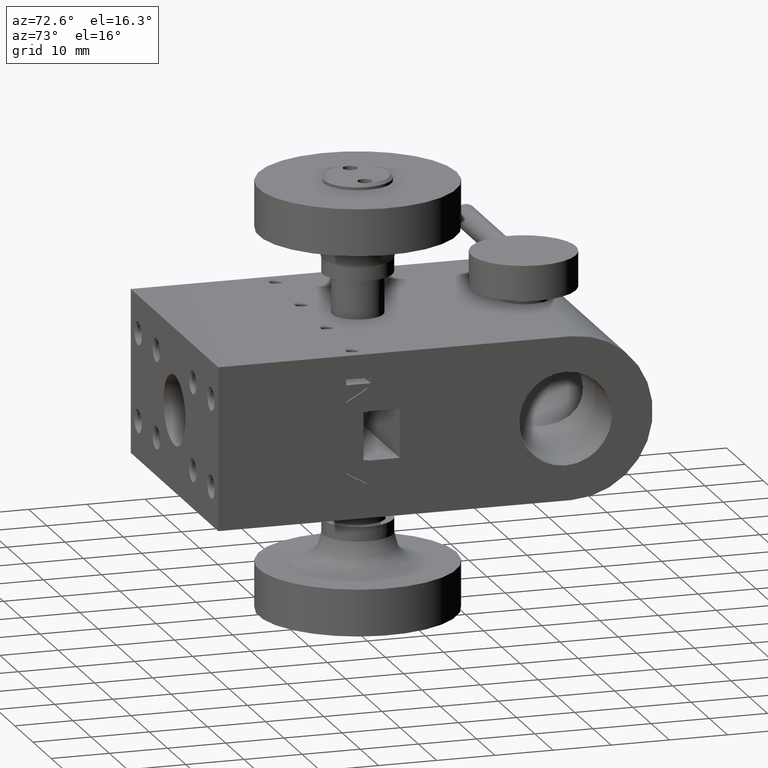
[diagram: clean part render]
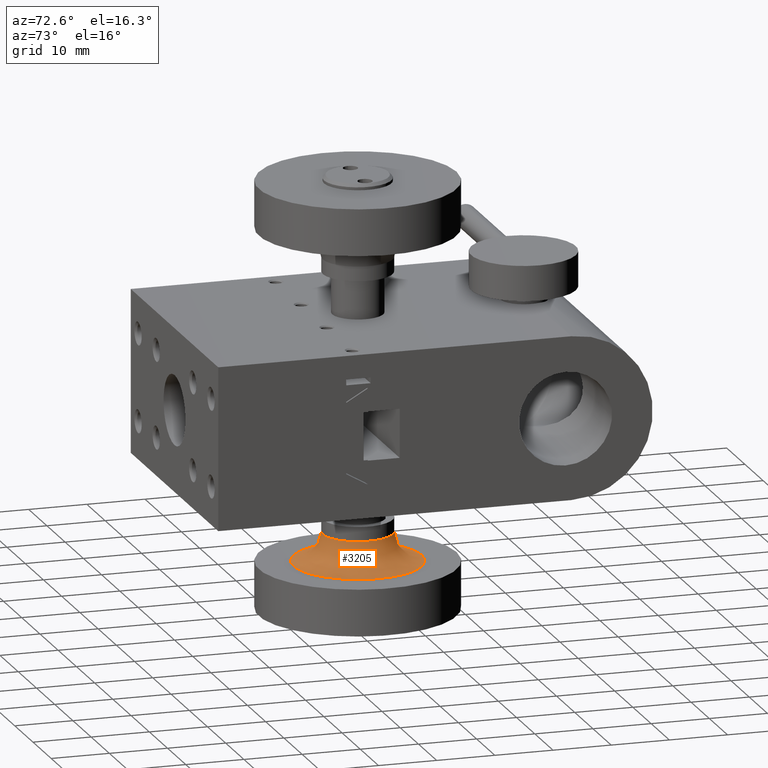
[diagram: same view with one face highlighted and labeled with its STEP entity id]
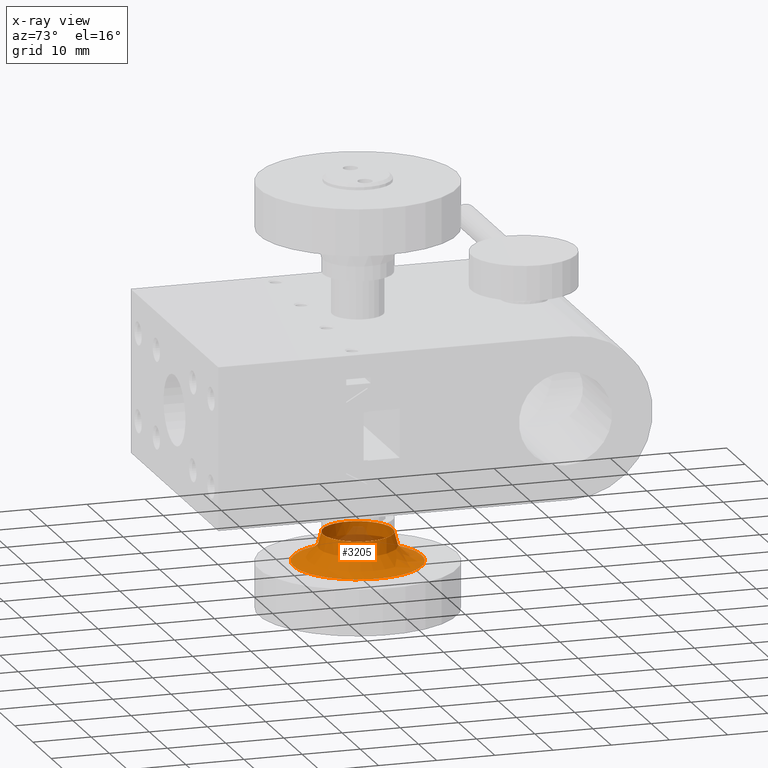
[diagram: x-ray of the same camera — body ghosted, the highlighted face saturated]
A machine part, auxiliary view. The second image highlights one B-rep face of the part: STEP entity #3205.
The next image is the same camera in x-ray: the body ghosted, the highlighted face saturated — about 6% of this face is hidden behind the body in this view.
In plain terms, the highlighted face is a freeform B-spline surface patch.
Its self-contained STEP definition (entity closure, byte-faithful):
#16 = CARTESIAN_POINT ( 'NONE',  ( -10.75139644228301528, 33.85254901752966106, -28.50000000000000000 ) ) ;
#33 = CARTESIAN_POINT ( 'NONE',  ( 10.79556906870054611, 33.61101553062786707, -28.50000000000000000 ) ) ;
#39 = CARTESIAN_POINT ( 'NONE',  ( -10.82765432733599731, 33.43958590687768151, -28.50000000000000000 ) ) ;
#45 = CARTESIAN_POINT ( 'NONE',  ( 16.14213562373092259, 39.57106781186544708, -28.50000000000001421 ) ) ;
#57 = CARTESIAN_POINT ( 'NONE',  ( 5.546319072649843918, 40.99949208852596172, -28.50000000000000000 ) ) ;
#63 = CARTESIAN_POINT ( 'NONE',  ( -10.38346660422327616, 35.13220416043404981, -28.50000000000000000 ) ) ;
#82 = CARTESIAN_POINT ( 'NONE',  ( 5.626238117076923118, 40.95281080506418903, -28.50000000000000000 ) ) ;
#87 = CARTESIAN_POINT ( 'NONE',  ( -9.937246139665202094, 36.23190117376898911, -28.50000000000000000 ) ) ;
#106 = CARTESIAN_POINT ( 'NONE',  ( 9.933316520382829751, 36.22929633842566233, -28.50000000000000000 ) ) ;
#119 = CARTESIAN_POINT ( 'NONE',  ( -3.548108076298940095, 21.08786073826610874, -28.50000000000000355 ) ) ;
#146 = CARTESIAN_POINT ( 'NONE',  ( 3.380625717567026012, 21.02622574388914600, -28.50000000000000355 ) ) ;
#166 = CARTESIAN_POINT ( 'NONE',  ( -2.111015530633238768, 42.29556906869883193, -28.50000000000000000 ) ) ;
#171 = CARTESIAN_POINT ( 'NONE',  ( -1.794773098638565711, 20.64730447128424728, -28.50000000000000355 ) ) ;
#188 = CARTESIAN_POINT ( 'NONE',  ( -2.045402653279724259, 42.30818592639142395, -28.50000000000000000 ) ) ;
#197 = CARTESIAN_POINT ( 'NONE',  ( -1.939585906879527588, 20.67234567266400447, -28.50000000000000355 ) ) ;
#202 = CARTESIAN_POINT ( 'NONE',  ( 4.731901173768947366, 41.43724613966008263, -28.50000000000000000 ) ) ;
#221 = CARTESIAN_POINT ( 'NONE',  ( 4.560834935039394189, 21.48996622918334509, -28.50000000000000355 ) ) ;
#227 = CARTESIAN_POINT ( 'NONE',  ( 10.93876200941283372, 30.32792680570762656, -28.50000000000000000 ) ) ;
#250 = CARTESIAN_POINT ( 'NONE',  ( -7.240977511827475510, 23.18457572885353102, -28.50000000000000355 ) ) ;
#254 = CARTESIAN_POINT ( 'NONE',  ( 10.88520818023198977, 29.91242045770127334, -28.50000000000000000 ) ) ;
#277 = CARTESIAN_POINT ( 'NONE',  ( -10.74629838392092651, 29.14925255843458274, -28.50000000000000000 ) ) ;
#281 = CARTESIAN_POINT ( 'NONE',  ( 10.99998377236804004, 31.16341644303477665, -28.50000000000000000 ) ) ;
#294 = EDGE_CURVE ( 'NONE', #3492, #3492, #2886, .T. ) ;
#301 = CARTESIAN_POINT ( 'NONE',  ( -8.884034468314471411, 25.01339121039729463, -28.50000000000000000 ) ) ;
#305 = CARTESIAN_POINT ( 'NONE',  ( 9.499492088527292211, 25.95368092734829091, -28.50000000000000000 ) ) ;
#327 = CARTESIAN_POINT ( 'NONE',  ( -5.224467544295712251, 21.81793403241615081, -28.50000000000000355 ) ) ;
#330 = CARTESIAN_POINT ( 'NONE',  ( 9.937246139661858990, 26.76809882622857018, -28.50000000000000000 ) ) ;
#348 = CARTESIAN_POINT ( 'NONE',  ( -10.79981798107048263, 29.41084321784766331, -28.50000000000000000 ) ) ;
#374 = CARTESIAN_POINT ( 'NONE',  ( -10.83859111853181645, 33.37754326111785730, -28.50000000000000000 ) ) ;
#399 = CARTESIAN_POINT ( 'NONE',  ( -7.778174593052024299, 39.27817459305202163, -28.50000000000000000 ) ) ;
#404 = CARTESIAN_POINT ( 'NONE',  ( 0.000000000000000000, 42.50000000000000000, -28.50000000000001066 ) ) ;
#417 = CARTESIAN_POINT ( 'NONE',  ( 10.70659239045689048, 34.02400562513545879, -28.50000000000000000 ) ) ;
#424 = CARTESIAN_POINT ( 'NONE',  ( -8.315424271132309642, 38.74097751183796845, -28.50000000000000000 ) ) ;
#428 = CARTESIAN_POINT ( 'NONE',  ( 11.99999999999996980, 37.49999999999998579, -26.42893218813453160 ) ) ;
#443 = CARTESIAN_POINT ( 'NONE',  ( 10.81635905258231567, 33.50159357653358683, -28.50000000000000000 ) ) ;
#450 = CARTESIAN_POINT ( 'NONE',  ( -6.486608789610669668, 40.38403446830857035, -28.50000000000000000 ) ) ;
#456 = CARTESIAN_POINT ( 'NONE',  ( -11.99999999999995381, 25.50000000000002132, -26.42893218813453160 ) ) ;
#468 = CARTESIAN_POINT ( 'NONE',  ( 5.386480983795683741, 41.09285465544952132, -28.50000000000000000 ) ) ;
#475 = CARTESIAN_POINT ( 'NONE',  ( -11.00000000000000000, 31.50000000000000000, -28.50000000000000000 ) ) ;
#494 = CARTESIAN_POINT ( 'NONE',  ( 8.046773133656795807, 39.00954975401321434, -28.50000000000000000 ) ) ;
#505 = CARTESIAN_POINT ( 'NONE',  ( 1.347111479062088602E-15, 20.50000000000000000, -28.50000000000000355 ) ) ;
#530 = CARTESIAN_POINT ( 'NONE',  ( 4.221108225916816892, 21.34200669538659767, -28.50000000000000355 ) ) ;
#546 = CARTESIAN_POINT ( 'NONE',  ( -4.306540600068502478, 41.62198109384577549, -28.50000000000000000 ) ) ;
#554 = CARTESIAN_POINT ( 'NONE',  ( 4.090524755338350360, 21.28874915770350285, -28.50000000000000355 ) ) ;
#556 = AXIS2_PLACEMENT_3D ( 'NONE', #4753, #1222, #4781 ) ;
#577 = CARTESIAN_POINT ( 'NONE',  ( -4.049041805180604747, 41.72767131168673416, -28.50000000000000000 ) ) ;
#582 = CARTESIAN_POINT ( 'NONE',  ( 0.6731671139339172605, 20.49996754473608362, -28.50000000000000355 ) ) ;
#586 = CARTESIAN_POINT ( 'NONE',  ( 3.966084088550289266, 41.76022897074719253, -28.50000000000000000 ) ) ;
#600 = CARTESIAN_POINT ( 'NONE',  ( -2.132855963155415591, 42.29125521661757858, -28.50000000000000000 ) ) ;
#603 = EDGE_CURVE ( 'NONE', #4644, #4644, #4379, .T. ) ;
#609 = CARTESIAN_POINT ( 'NONE',  ( -1.670512926602160775, 20.62722330668192328, -28.50000000000000355 ) ) ;
#613 = CARTESIAN_POINT ( 'NONE',  ( 6.410257687857505715, 22.56024184735327864, -28.50000000000000355 ) ) ;
#633 = CARTESIAN_POINT ( 'NONE',  ( -5.784444692942730448, 22.14366520294946028, -28.50000000000000355 ) ) ;
#639 = CARTESIAN_POINT ( 'NONE',  ( 10.32301328794731177, 27.70051436524500943, -28.50000000000000000 ) ) ;
#662 = CARTESIAN_POINT ( 'NONE',  ( -10.72696490486901766, 29.06247693898342987, -28.50000000000000000 ) ) ;
#667 = CARTESIAN_POINT ( 'NONE',  ( 10.93881877208044529, 32.83965884799583534, -28.50000000000000000 ) ) ;
#671 =( BOUNDED_SURFACE ( )  B_SPLINE_SURFACE ( 3, 3, ( 
 ( #2821, #2791, #1616, #4330, #4304, #770, #4354 ),
 ( #3588, #428, #2009, #3204, #456, #1642, #4001 ),
 ( #5101, #45, #4764, #1568, #2350, #4409, #1160 ),
 ( #1665, #3947, #2453, #4026, #2061, #3564, #404 ) ),
 .UNSPECIFIED., .F., .T., .F. ) 
 B_SPLINE_SURFACE_WITH_KNOTS ( ( 4, 4 ),
 ( 4, 3, 4 ),
 ( 0.000000000000000000, 1.000000000000000000 ),
 ( 0.000000000000000000, 0.5000000000000000000, 1.000000000000000000 ),
 .UNSPECIFIED. ) 
 GEOMETRIC_REPRESENTATION_ITEM ( )  RATIONAL_B_SPLINE_SURFACE ( (
 ( 1.000000000000000000, 0.3333333333333333148, 0.3333333333333333148, 1.000000000000000000, 0.3333333333333333148, 0.3333333333333333148, 1.000000000000000000),
 ( 0.8047378541243646044, 0.2682459513747881830, 0.2682459513747881830, 0.8047378541243646044, 0.2682459513747881830, 0.2682459513747881830, 0.8047378541243646044),
 ( 0.8047378541243646044, 0.2682459513747881830, 0.2682459513747881830, 0.8047378541243646044, 0.2682459513747881830, 0.2682459513747881830, 0.8047378541243646044),
 ( 1.000000000000000000, 0.3333333333333333148, 0.3333333333333333148, 1.000000000000000000, 0.3333333333333333148, 0.3333333333333333148, 1.000000000000000000) ) ) 
 REPRESENTATION_ITEM ( '' )  SURFACE ( )  );
#682 = CARTESIAN_POINT ( 'NONE',  ( 0.3364958884655013249, 42.50000000000000000, -28.50000000000000000 ) ) ;
#691 = CARTESIAN_POINT ( 'NONE',  ( -10.08570817036544298, 27.10816054495163030, -28.50000000000000000 ) ) ;
#695 = CARTESIAN_POINT ( 'NONE',  ( 10.38346660421884771, 27.86779583955092932, -28.50000000000000000 ) ) ;
#716 = CARTESIAN_POINT ( 'NONE',  ( -9.767367809132268874, 26.44018977463567666, -28.50000000000000000 ) ) ;
#721 = CARTESIAN_POINT ( 'NONE',  ( 9.452810805065366750, 25.87376188292141777, -28.50000000000000000 ) ) ;
#736 = CARTESIAN_POINT ( 'NONE',  ( 2.001593576533591268, 42.31635905258232810, -28.50000000000000000 ) ) ;
#743 = CARTESIAN_POINT ( 'NONE',  ( -9.852427866489064101, 26.60437856480700702, -28.50000000000000000 ) ) ;
#758 = CARTESIAN_POINT ( 'NONE',  ( 1.836129428881450032, 42.34577029806718684, -28.50000000000000000 ) ) ;
#762 = CARTESIAN_POINT ( 'NONE',  ( -10.81635905258231567, 33.50159357653358683, -28.50000000000000000 ) ) ;
#770 = CARTESIAN_POINT ( 'NONE',  ( -11.99999999999995381, 37.49999999999997868, -23.49999999999999645 ) ) ;
#784 = CARTESIAN_POINT ( 'NONE',  ( 3.882898698413852490, 41.79200962949894915, -28.50000000000000000 ) ) ;
#788 = CARTESIAN_POINT ( 'NONE',  ( -10.85938925024986368, 33.25335304128644509, -28.50000000000000000 ) ) ;
#810 = CARTESIAN_POINT ( 'NONE',  ( 6.019307287236567383, 40.70695062340516301, -28.50000000000000000 ) ) ;
#816 = CARTESIAN_POINT ( 'NONE',  ( -10.98467224626725169, 32.17167480014637704, -28.50000000000000000 ) ) ;
#833 = CARTESIAN_POINT ( 'NONE',  ( 10.80400195373168692, 33.56727971771341146, -28.50000000000000000 ) ) ;
#838 = CARTESIAN_POINT ( 'NONE',  ( -10.32301328795021789, 35.29948563474513179, -28.50000000000000000 ) ) ;
#857 = CARTESIAN_POINT ( 'NONE',  ( 7.240977511842475955, 39.81542427112963622, -28.50000000000000000 ) ) ;
#863 = CARTESIAN_POINT ( 'NONE',  ( -6.097129069129507251, 40.65607778779563120, -28.50000000000000000 ) ) ;
#879 = CARTESIAN_POINT ( 'NONE',  ( 8.939758152627508281, 37.91025768787855554, -28.50000000000000000 ) ) ;
#919 = CARTESIAN_POINT ( 'NONE',  ( 4.135275294291884229, 21.30677662277492956, -28.50000000000000355 ) ) ;
#937 = CARTESIAN_POINT ( 'NONE',  ( -5.059810225364934411, 41.26736780913277869, -28.50000000000000000 ) ) ;
#942 = CARTESIAN_POINT ( 'NONE',  ( 5.059810225334986811, 21.73263219085362508, -28.50000000000000355 ) ) ;
#965 = CARTESIAN_POINT ( 'NONE',  ( -2.350747441570081087, 42.24629838391867764, -28.50000000000000000 ) ) ;
#971 = CARTESIAN_POINT ( 'NONE',  ( -2.352549017557064026, 20.74860355772404930, -28.50000000000000355 ) ) ;
#975 = CARTESIAN_POINT ( 'NONE',  ( 9.597247694421390918, 36.88818780570732514, -28.50000000000000000 ) ) ;
#992 = CARTESIAN_POINT ( 'NONE',  ( -4.476604233379829267, 41.54839239601929535, -28.50000000000000000 ) ) ;
#996 = CARTESIAN_POINT ( 'NONE',  ( -1.504552888387972631, 20.60331628900840428, -28.50000000000000355 ) ) ;
#1000 = CARTESIAN_POINT ( 'NONE',  ( 11.00003245526391638, 32.17316711393045381, -28.50000000000000000 ) ) ;
#1022 = CARTESIAN_POINT ( 'NONE',  ( -2.001593576533592600, 20.68364094741768611, -28.50000000000000355 ) ) ;
#1027 = CARTESIAN_POINT ( 'NONE',  ( 10.22767131168673416, 27.45095819481940325, -28.50000000000000000 ) ) ;
#1045 = CARTESIAN_POINT ( 'NONE',  ( -10.22767131168672883, 27.45095819481939259, -28.50000000000000000 ) ) ;
#1052 = CARTESIAN_POINT ( 'NONE',  ( 10.89668371099159927, 29.99544711161397359, -28.50000000000000000 ) ) ;
#1075 = CARTESIAN_POINT ( 'NONE',  ( -5.939821530049044007, 22.24107779412481989, -28.50000000000000355 ) ) ;
#1080 = CARTESIAN_POINT ( 'NONE',  ( 9.405091707907560661, 25.79438667615924530, -28.50000000000000000 ) ) ;
#1103 = CARTESIAN_POINT ( 'NONE',  ( -10.35903506680927855, 27.78282179607904823, -28.50000000000000000 ) ) ;
#1109 = CARTESIAN_POINT ( 'NONE',  ( 10.30764095877646724, 27.65876988783704604, -28.50000000000000000 ) ) ;
#1123 = CARTESIAN_POINT ( 'NONE',  ( 1.939569982718129193, 42.32765727493322316, -28.50000000000000000 ) ) ;
#1129 = CARTESIAN_POINT ( 'NONE',  ( -4.731901173781722036, 21.56275386034576158, -28.50000000000000355 ) ) ;
#1157 = CARTESIAN_POINT ( 'NONE',  ( -10.79125521661851295, 29.36714403684652908, -28.50000000000000000 ) ) ;
#1160 = CARTESIAN_POINT ( 'NONE',  ( 0.000000000000000000, 39.57106781186546129, -28.50000000000001421 ) ) ;
#1171 = CARTESIAN_POINT ( 'NONE',  ( 3.799485634771288645, 41.82301328794202533, -28.50000000000000000 ) ) ;
#1177 = CARTESIAN_POINT ( 'NONE',  ( -10.85269552871575627, 33.29477309863286649, -28.50000000000000000 ) ) ;
#1195 = CARTESIAN_POINT ( 'NONE',  ( 10.77374004945492914, 33.72014442940437817, -28.50000000000000000 ) ) ;
#1199 = CARTESIAN_POINT ( 'NONE',  ( -10.09076123524357627, 35.89482219079197023, -28.50000000000000000 ) ) ;
#1218 = CARTESIAN_POINT ( 'NONE',  ( 10.79981798107123581, 33.58915678214931688, -28.50000000000000000 ) ) ;
#1222 = DIRECTION ( 'NONE',  ( -0.000000000000000000, -9.251858538542970348E-17, 1.000000000000000000 ) ) ;
#1224 = CARTESIAN_POINT ( 'NONE',  ( -9.258922205875613543, 37.43982153004908042, -28.50000000000000000 ) ) ;
#1244 = CARTESIAN_POINT ( 'NONE',  ( 5.784444692937144694, 40.85633479705310123, -28.50000000000000000 ) ) ;
#1250 = CARTESIAN_POINT ( 'NONE',  ( -6.333140345145989336, 40.49452967438174511, -28.50000000000000000 ) ) ;
#1272 = CARTESIAN_POINT ( 'NONE',  ( 10.12198109384674183, 35.80654060006838080, -28.50000000000000000 ) ) ;
#1294 = CARTESIAN_POINT ( 'NONE',  ( 10.19322337722323191, 35.63527529429667595, -28.50000000000000000 ) ) ;
#1311 = CARTESIAN_POINT ( 'NONE',  ( -1.877543261121424001, 20.66140888146818710, -28.50000000000000355 ) ) ;
#1329 = CARTESIAN_POINT ( 'NONE',  ( 0.000000000000000000, 42.50000000000000000, -28.50000000000000000 ) ) ;
#1336 = CARTESIAN_POINT ( 'NONE',  ( 4.476604233359863017, 21.45160760397164879, -28.50000000000000355 ) ) ;
#1361 = CARTESIAN_POINT ( 'NONE',  ( -1.898229972391465070, 20.66499473127381492, -28.50000000000000355 ) ) ;
#1385 = CARTESIAN_POINT ( 'NONE',  ( 4.391839455031864681, 21.41429182962662736, -28.50000000000000355 ) ) ;
#1389 = CARTESIAN_POINT ( 'NONE',  ( 10.09076123524134871, 27.10517780920640263, -28.50000000000000000 ) ) ;
#1411 = CARTESIAN_POINT ( 'NONE',  ( 2.111015530630901971, 20.70443093130058898, -28.50000000000000355 ) ) ;
#1415 = CARTESIAN_POINT ( 'NONE',  ( 10.82041921572630017, 29.52034113852959507, -28.50000000000000000 ) ) ;
#1436 = CARTESIAN_POINT ( 'NONE',  ( -5.060278754124382772, 21.73287397505935203, -28.50000000000000355 ) ) ;
#1440 = CARTESIAN_POINT ( 'NONE',  ( 9.682065967591466205, 26.27553245571457907, -28.50000000000000000 ) ) ;
#1461 = CARTESIAN_POINT ( 'NONE',  ( -5.863276062038920600, 22.19242211380219842, -28.50000000000000355 ) ) ;
#1467 = CARTESIAN_POINT ( 'NONE',  ( 7.509549753992168064, 23.45322686632399112, -28.50000000000000355 ) ) ;
#1491 = CARTESIAN_POINT ( 'NONE',  ( -6.655193344736717087, 22.70882203635495955, -28.50000000000000355 ) ) ;
#1495 = CARTESIAN_POINT ( 'NONE',  ( 6.333140345129352866, 22.50547032560394456, -28.50000000000000355 ) ) ;
#1507 = CARTESIAN_POINT ( 'NONE',  ( 1.918889793323177440, 42.33136357009594519, -28.50000000000000000 ) ) ;
#1516 = CARTESIAN_POINT ( 'NONE',  ( -10.77374004945316344, 29.27985557058857324, -28.50000000000000000 ) ) ;
#1531 = CARTESIAN_POINT ( 'NONE',  ( 1.171941691542782493, 42.43878635086077367, -28.50000000000000000 ) ) ;
#1535 = CARTESIAN_POINT ( 'NONE',  ( -10.79556906869961530, 29.38898446936840614, -28.50000000000000000 ) ) ;
#1555 = CARTESIAN_POINT ( 'NONE',  ( 3.379915907991065449, 41.96948457676178634, -28.50000000000000000 ) ) ;
#1563 = CARTESIAN_POINT ( 'NONE',  ( -10.66985782539206618, 34.19864742374828381, -28.50000000000000000 ) ) ;
#1568 = CARTESIAN_POINT ( 'NONE',  ( 0.000000000000000000, 23.42893218813454226, -28.50000000000001421 ) ) ;
#1589 = CARTESIAN_POINT ( 'NONE',  ( -10.41213926174183690, 35.04810807626812164, -28.50000000000000000 ) ) ;
#1604 = CARTESIAN_POINT ( 'NONE',  ( 9.048349033563026111, 37.75525676141785425, -28.50000000000000000 ) ) ;
#1609 = CARTESIAN_POINT ( 'NONE',  ( -9.767126024951608088, 36.56027875411164985, -28.50000000000000000 ) ) ;
#1616 = CARTESIAN_POINT ( 'NONE',  ( 11.99999999999995381, 25.50000000000002132, -23.50000000000000000 ) ) ;
#1629 = CARTESIAN_POINT ( 'NONE',  ( 9.102168392746214920, 37.67737317768858674, -28.50000000000000000 ) ) ;
#1634 = CARTESIAN_POINT ( 'NONE',  ( -6.639310993077566891, 40.27258709966618255, -28.50000000000000000 ) ) ;
#1642 = CARTESIAN_POINT ( 'NONE',  ( -11.99999999999995381, 37.49999999999997868, -26.42893218813453160 ) ) ;
#1654 = CARTESIAN_POINT ( 'NONE',  ( 4.049041805180600306, 41.72767131168674126, -28.50000000000000000 ) ) ;
#1660 = CARTESIAN_POINT ( 'NONE',  ( -10.91963477251081649, 32.83849958054909024, -28.50000000000000000 ) ) ;
#1665 = CARTESIAN_POINT ( 'NONE',  ( 0.000000000000000000, 42.50000000000000000, -28.50000000000001066 ) ) ;
#1682 = CARTESIAN_POINT ( 'NONE',  ( 8.538266411547464685, 38.43552050803995002, -28.50000000000000000 ) ) ;
#1692 = CARTESIAN_POINT ( 'NONE',  ( -3.632204160461444342, 21.11653339578378663, -28.50000000000000355 ) ) ;
#1715 = CARTESIAN_POINT ( 'NONE',  ( -5.388187805707595146, 41.09724769441918824, -28.50000000000000000 ) ) ;
#1722 = CARTESIAN_POINT ( 'NONE',  ( 5.388187805677647546, 21.90275230556722263, -28.50000000000000355 ) ) ;
#1748 = CARTESIAN_POINT ( 'NONE',  ( 2.067279717715265086, 20.69599804626900763, -28.50000000000000355 ) ) ;
#1766 = CARTESIAN_POINT ( 'NONE',  ( -2.001593576533594820, 42.31635905258232100, -28.50000000000000000 ) ) ;
#1772 = CARTESIAN_POINT ( 'NONE',  ( -1.979658861469625331, 20.67958078427353641, -28.50000000000000355 ) ) ;
#1776 = CARTESIAN_POINT ( 'NONE',  ( 10.72696490487215293, 33.93752306100404326, -28.50000000000000000 ) ) ;
#1797 = CARTESIAN_POINT ( 'NONE',  ( 3.039384346125858283, 20.92811112040654820, -28.50000000000000355 ) ) ;
#1803 = CARTESIAN_POINT ( 'NONE',  ( 5.708020159644839886, 22.08955803414762542, -28.50000000000000355 ) ) ;
#1823 = CARTESIAN_POINT ( 'NONE',  ( -4.049041805180600306, 21.27232868831326584, -28.50000000000000355 ) ) ;
#1828 = CARTESIAN_POINT ( 'NONE',  ( 10.85938925024986546, 29.74664695870803399, -28.50000000000000000 ) ) ;
#1851 = CARTESIAN_POINT ( 'NONE',  ( -8.994529674386168239, 25.16685965485998366, -28.50000000000000000 ) ) ;
#1855 = CARTESIAN_POINT ( 'NONE',  ( 10.41213926173685600, 27.95189192371497811, -28.50000000000000000 ) ) ;
#1868 = CARTESIAN_POINT ( 'NONE',  ( 1.753295508839015859, 42.35939989963334540, -28.50000000000000000 ) ) ;
#1877 = CARTESIAN_POINT ( 'NONE',  ( -10.14011755558560601, 27.23610882742183037, -28.50000000000000000 ) ) ;
#1883 = CARTESIAN_POINT ( 'NONE',  ( 6.639310993050458798, 22.72741290031049388, -28.50000000000000355 ) ) ;
#1904 = CARTESIAN_POINT ( 'NONE',  ( -9.410441965842974099, 25.79197984033560331, -28.50000000000000000 ) ) ;
#1910 = CARTESIAN_POINT ( 'NONE',  ( 10.95406542169764030, 30.49472627041875938, -28.50000000000000000 ) ) ;
#1913 = CARTESIAN_POINT ( 'NONE',  ( 0.000000000000000000, 37.49999999999999289, -23.50000000000000000 ) ) ;
#1922 = CARTESIAN_POINT ( 'NONE',  ( 1.504454261323834086, 42.39670196707756133, -28.50000000000000000 ) ) ;
#1932 = CARTESIAN_POINT ( 'NONE',  ( -10.17560834091592525, 27.32180823988876739, -28.50000000000000000 ) ) ;
#1951 = CARTESIAN_POINT ( 'NONE',  ( 3.210509480969826690, 42.02268589014943956, -28.50000000000000000 ) ) ;
#1955 = CARTESIAN_POINT ( 'NONE',  ( -10.57174320190947014, 34.53988879518945510, -28.50000000000000000 ) ) ;
#1982 = CARTESIAN_POINT ( 'NONE',  ( -5.708020159664805249, 40.91044196584331161, -28.50000000000000000 ) ) ;
#1997 = CARTESIAN_POINT ( 'NONE',  ( 10.79125521661961606, 33.63285596314906201, -28.50000000000000000 ) ) ;
#2004 = CARTESIAN_POINT ( 'NONE',  ( -9.356334797055337660, 37.28444469293716423, -28.50000000000000000 ) ) ;
#2009 = CARTESIAN_POINT ( 'NONE',  ( 11.99999999999995381, 25.50000000000002132, -26.42893218813453160 ) ) ;
#2022 = CARTESIAN_POINT ( 'NONE',  ( 10.80818592639213627, 33.54540265327749893, -28.50000000000000000 ) ) ;
#2029 = CARTESIAN_POINT ( 'NONE',  ( -8.791177963641590765, 38.15519334473651014, -28.50000000000000000 ) ) ;
#2050 = CARTESIAN_POINT ( 'NONE',  ( 8.300137073155276823, 38.72866505900919520, -28.50000000000000000 ) ) ;
#2055 = CARTESIAN_POINT ( 'NONE',  ( -10.83135967166091440, 33.41891085430840036, -28.50000000000000000 ) ) ;
#2061 = CARTESIAN_POINT ( 'NONE',  ( -21.99999999999999289, 20.50000000000000711, -28.50000000000001066 ) ) ;
#2074 = CARTESIAN_POINT ( 'NONE',  ( 8.772587099663082810, 38.13931099307940542, -28.50000000000000000 ) ) ;
#2079 = CARTESIAN_POINT ( 'NONE',  ( -4.729296338425911017, 41.43331652038081359, -28.50000000000000000 ) ) ;
#2084 = CARTESIAN_POINT ( 'NONE',  ( -1.587579542300452617, 20.61479181976801556, -28.50000000000000355 ) ) ;
#2109 = EDGE_LOOP ( 'NONE', ( #4562 ) ) ;
#2112 = CARTESIAN_POINT ( 'NONE',  ( 4.178191760104350116, 21.32439165908076362, -28.50000000000000355 ) ) ;
#2140 = CARTESIAN_POINT ( 'NONE',  ( -1.005273729583834097, 20.54593457830235792, -28.50000000000000355 ) ) ;
#2160 = CARTESIAN_POINT ( 'NONE',  ( -2.067279717716694165, 42.30400195373063355, -28.50000000000000000 ) ) ;
#2165 = CARTESIAN_POINT ( 'NONE',  ( 2.022279036799789154, 20.68746781365200249, -28.50000000000000355 ) ) ;
#2169 = CARTESIAN_POINT ( 'NONE',  ( 10.62094619134045281, 34.36876366039000175, -28.50000000000000000 ) ) ;
#2192 = CARTESIAN_POINT ( 'NONE',  ( -1.172073194294966925, 20.56123799058716273, -28.50000000000000355 ) ) ;
#2198 = CARTESIAN_POINT ( 'NONE',  ( 6.177373177678711968, 22.39783160724477540, -28.50000000000000355 ) ) ;
#2219 = CARTESIAN_POINT ( 'NONE',  ( -10.01003377080608026, 26.93916506493859941, -28.50000000000000000 ) ) ;
#2225 = CARTESIAN_POINT ( 'NONE',  ( 10.24478507124240778, 27.49418074302102610, -28.50000000000000000 ) ) ;
#2229 = CARTESIAN_POINT ( 'NONE',  ( 0.000000000000000000, 42.50000000000000000, -28.50000000000000000 ) ) ;
#2244 = CARTESIAN_POINT ( 'NONE',  ( -8.300137073166526491, 24.27133494100343469, -28.50000000000000000 ) ) ;
#2248 = CARTESIAN_POINT ( 'NONE',  ( 8.791177963638070025, 24.84480665525447662, -28.50000000000000000 ) ) ;
#2273 = CARTESIAN_POINT ( 'NONE',  ( -10.12198109384555167, 27.19345939993176486, -28.50000000000000000 ) ) ;
#2276 = CARTESIAN_POINT ( 'NONE',  ( 10.66985782538542260, 28.80135257622916711, -28.50000000000000000 ) ) ;
#2297 = CARTESIAN_POINT ( 'NONE',  ( -10.62094619133574547, 28.63123633959121506, -28.50000000000000000 ) ) ;
#2303 = CARTESIAN_POINT ( 'NONE',  ( 10.82394898301108199, 29.53973904055198574, -28.50000000000000000 ) ) ;
#2322 = CARTESIAN_POINT ( 'NONE',  ( -3.924491393477690160, 21.22388069987502135, -28.50000000000000355 ) ) ;
#2345 = CARTESIAN_POINT ( 'NONE',  ( -7.228665059007190585, 39.80013707315865901, -28.50000000000000000 ) ) ;
#2350 = CARTESIAN_POINT ( 'NONE',  ( -16.14213562373091904, 23.42893218813453160, -28.50000000000001421 ) ) ;
#2368 = CARTESIAN_POINT ( 'NONE',  ( -10.29200962950470633, 35.38289869839548629, -28.50000000000000000 ) ) ;
#2390 = CARTESIAN_POINT ( 'NONE',  ( 6.655193344721528348, 40.29117796365839865, -28.50000000000000000 ) ) ;
#2396 = CARTESIAN_POINT ( 'NONE',  ( -9.405091707909443599, 37.20561332383938691, -28.50000000000000000 ) ) ;
#2401 = FACE_OUTER_BOUND ( 'NONE', #2109, .T. ) ;
#2414 = CARTESIAN_POINT ( 'NONE',  ( 10.08570817036697242, 35.89183945504855444, -28.50000000000000000 ) ) ;
#2423 = CARTESIAN_POINT ( 'NONE',  ( -10.22767131168673060, 35.54904180518060031, -28.50000000000000000 ) ) ;
#2441 = CARTESIAN_POINT ( 'NONE',  ( 4.394822190791944472, 41.59076123524016566, -28.50000000000000000 ) ) ;
#2448 = CARTESIAN_POINT ( 'NONE',  ( -10.93876200941283017, 32.67207319427977552, -28.50000000000000000 ) ) ;
#2453 = CARTESIAN_POINT ( 'NONE',  ( 21.99999999999999289, 20.50000000000000711, -28.50000000000001066 ) ) ;
#2468 = CARTESIAN_POINT ( 'NONE',  ( 8.657331080743560392, 38.28894823255532742, -28.50000000000000000 ) ) ;
#2474 = CARTESIAN_POINT ( 'NONE',  ( -2.089156782153664516, 42.29981798106985025, -28.50000000000000000 ) ) ;
#2508 = CARTESIAN_POINT ( 'NONE',  ( 4.306540600055399182, 21.37801890614828082, -28.50000000000000355 ) ) ;
#2533 = CARTESIAN_POINT ( 'NONE',  ( -0.3365835569669565763, 20.50001622763195641, -28.50000000000000355 ) ) ;
#2552 = CARTESIAN_POINT ( 'NONE',  ( -4.263891172578397892, 41.64011755558579608, -28.50000000000000000 ) ) ;
#2558 = CARTESIAN_POINT ( 'NONE',  ( 2.524005625146916731, 20.79340760954738698, -28.50000000000000355 ) ) ;
#2563 = CARTESIAN_POINT ( 'NONE',  ( 10.35903506681241559, 35.21717820390842490, -28.50000000000000000 ) ) ;
#2579 = CARTESIAN_POINT ( 'NONE',  ( -1.339834095288666482, 42.43878635086077367, -28.50000000000000000 ) ) ;
#2584 = CARTESIAN_POINT ( 'NONE',  ( 2.437523061014227999, 20.77303509513164670, -28.50000000000000355 ) ) ;
#2589 = CARTESIAN_POINT ( 'NONE',  ( 10.91963477251082004, 30.16150041943936699, -28.50000000000000000 ) ) ;
#2610 = CARTESIAN_POINT ( 'NONE',  ( -3.210509480951135863, 20.97731410984242473, -28.50000000000000355 ) ) ;
#2614 = CARTESIAN_POINT ( 'NONE',  ( 10.87277669331807850, 29.82948707339929584, -28.50000000000000000 ) ) ;
#2639 = CARTESIAN_POINT ( 'NONE',  ( -9.102168392749730330, 25.32262682231536388, -28.50000000000000000 ) ) ;
#2644 = CARTESIAN_POINT ( 'NONE',  ( 9.258922205876052303, 25.56017846995205289, -28.50000000000000000 ) ) ;
#2665 = CARTESIAN_POINT ( 'NONE',  ( -9.048349033567950173, 25.24474323858767377, -28.50000000000000000 ) ) ;
#2669 = CARTESIAN_POINT ( 'NONE',  ( 6.935520508008375273, 22.96173358842371215, -28.50000000000000355 ) ) ;
#2685 = CARTESIAN_POINT ( 'NONE',  ( 1.794723785106495662, 42.35270465675873908, -28.50000000000000000 ) ) ;
#2694 = CARTESIAN_POINT ( 'NONE',  ( -10.57188887959444656, 28.46061565387062942, -28.50000000000000000 ) ) ;
#2698 = CARTESIAN_POINT ( 'NONE',  ( 10.83859111853181822, 29.62245673887917974, -28.50000000000000000 ) ) ;
#2711 = CARTESIAN_POINT ( 'NONE',  ( 1.960250172113081391, 42.32395097977049403, -28.50000000000000000 ) ) ;
#2716 = CARTESIAN_POINT ( 'NONE',  ( -5.626238117085438084, 22.04718919493971185, -28.50000000000000355 ) ) ;
#2742 = CARTESIAN_POINT ( 'NONE',  ( -10.83500526872618686, 33.39822997238844948, -28.50000000000000000 ) ) ;
#2757 = CARTESIAN_POINT ( 'NONE',  ( 3.632204160473905041, 41.88346660421078838, -28.50000000000000000 ) ) ;
#2763 = CARTESIAN_POINT ( 'NONE',  ( -10.52268589016817302, 34.71050948091003363, -28.50000000000000000 ) ) ;
#2780 = CARTESIAN_POINT ( 'NONE',  ( 10.78262751245775419, 33.67653682819144478, -28.50000000000000000 ) ) ;
#2785 = CARTESIAN_POINT ( 'NONE',  ( -10.26022897075020879, 35.46608408854063299, -28.50000000000000000 ) ) ;
#2791 = CARTESIAN_POINT ( 'NONE',  ( 11.99999999999996980, 37.49999999999997868, -23.50000000000000000 ) ) ;
#2809 = CARTESIAN_POINT ( 'NONE',  ( 9.410441965844784207, 37.20802015966462051, -28.50000000000000000 ) ) ;
#2815 = CARTESIAN_POINT ( 'NONE',  ( -6.788948232553326356, 40.15733108074694968, -28.50000000000000000 ) ) ;
#2821 = CARTESIAN_POINT ( 'NONE',  ( 0.000000000000000000, 37.49999999999998579, -23.50000000000000000 ) ) ;
#2834 = CARTESIAN_POINT ( 'NONE',  ( 8.994529674379837303, 37.83314034514712176, -28.50000000000000000 ) ) ;
#2841 = CARTESIAN_POINT ( 'NONE',  ( -6.255256761416971401, 40.54834903356451292, -28.50000000000000000 ) ) ;
#2859 = CARTESIAN_POINT ( 'NONE',  ( 5.060278754111608990, 41.26712602494649218, -28.50000000000000000 ) ) ;
#2886 = CIRCLE ( 'NONE', #556, 5.999999999999991118 ) ;
#2887 = CARTESIAN_POINT ( 'NONE',  ( 10.21125084229602287, 35.59052475533962934, -28.50000000000000000 ) ) ;
#2894 = CARTESIAN_POINT ( 'NONE',  ( -4.560834935061856221, 41.51003377080646572, -28.50000000000000000 ) ) ;
#2904 = CARTESIAN_POINT ( 'NONE',  ( -3.841230112169915945, 21.19235904122501424, -28.50000000000000355 ) ) ;
#2928 = CARTESIAN_POINT ( 'NONE',  ( 2.176536828196141471, 20.71737248754400440, -28.50000000000000355 ) ) ;
#2945 = CARTESIAN_POINT ( 'NONE',  ( -4.391839455048710761, 41.58570817036572720, -28.50000000000000000 ) ) ;
#2950 = CARTESIAN_POINT ( 'NONE',  ( -1.960260959448222318, 20.67605101698892156, -28.50000000000000355 ) ) ;
#2972 = CARTESIAN_POINT ( 'NONE',  ( -2.868763660417080974, 42.12094619133174689, -28.50000000000000000 ) ) ;
#2977 = CARTESIAN_POINT ( 'NONE',  ( -2.698647423789383382, 20.83014217461852624, -28.50000000000000355 ) ) ;
#2981 = CARTESIAN_POINT ( 'NONE',  ( 8.315424271171735882, 24.25902248819594931, -28.50000000000000355 ) ) ;
#3000 = CARTESIAN_POINT ( 'NONE',  ( 2.001593576533594820, 20.68364094741768611, -28.50000000000000355 ) ) ;
#3003 = CARTESIAN_POINT ( 'NONE',  ( 10.84576281814307563, 29.66383016141945106, -28.50000000000000000 ) ) ;
#3028 = CARTESIAN_POINT ( 'NONE',  ( -9.206950623405163014, 25.48069271276343528, -28.50000000000000000 ) ) ;
#3033 = CARTESIAN_POINT ( 'NONE',  ( 10.35375794628900081, 27.78400332006093976, -28.50000000000000000 ) ) ;
#3057 = CARTESIAN_POINT ( 'NONE',  ( -8.046773133664295585, 23.99045024599519849, -28.50000000000000355 ) ) ;
#3063 = CARTESIAN_POINT ( 'NONE',  ( 10.98467224626725347, 30.82832519984102504, -28.50000000000000000 ) ) ;
#3081 = CARTESIAN_POINT ( 'NONE',  ( -9.597247694418674868, 26.11181219429301592, -28.50000000000000000 ) ) ;
#3086 = CARTESIAN_POINT ( 'NONE',  ( 6.097129069134497037, 22.34392221220663544, -28.50000000000000355 ) ) ;
#3099 = CARTESIAN_POINT ( 'NONE',  ( 1.898203945805093884, 42.33501008630443607, -28.50000000000000000 ) ) ;
#3105 = CARTESIAN_POINT ( 'NONE',  ( -7.778174593052021635, 23.72182540694797837, -28.50000000000000355 ) ) ;
#3129 = CARTESIAN_POINT ( 'NONE',  ( -10.80400195373111671, 29.43272028228431125, -28.50000000000000000 ) ) ;
#3147 = CARTESIAN_POINT ( 'NONE',  ( 3.548108076312958659, 41.91213926172778770, -28.50000000000000000 ) ) ;
#3153 = CARTESIAN_POINT ( 'NONE',  ( -10.27611930012745844, 35.42449139346805964, -28.50000000000000000 ) ) ;
#3168 = CARTESIAN_POINT ( 'NONE',  ( 0.6715432974093846763, 42.48469658771519875, -28.50000000000000000 ) ) ;
#3176 = CARTESIAN_POINT ( 'NONE',  ( -10.89668371099159572, 33.00455288837657974, -28.50000000000000000 ) ) ;
#3193 = CARTESIAN_POINT ( 'NONE',  ( 9.206950623405163014, 37.51930728723657182, -28.50000000000000000 ) ) ;
#3199 = CARTESIAN_POINT ( 'NONE',  ( -10.87277669331807672, 33.17051292659361650, -28.50000000000000000 ) ) ;
#3204 = CARTESIAN_POINT ( 'NONE',  ( 0.000000000000000000, 25.50000000000002487, -26.42893218813453160 ) ) ;
#3205 = ADVANCED_FACE ( 'NONE', ( #4788, #2401 ), #671, .F. ) ;
#3218 = CARTESIAN_POINT ( 'NONE',  ( 7.778174593052022523, 39.27817459305202163, -28.50000000000000000 ) ) ;
#3224 = CARTESIAN_POINT ( 'NONE',  ( -6.410257687877221500, 40.43975815262976425, -28.50000000000000000 ) ) ;
#3241 = CARTESIAN_POINT ( 'NONE',  ( 5.863276062034932679, 40.80757788619963122, -28.50000000000000000 ) ) ;
#3247 = CARTESIAN_POINT ( 'NONE',  ( -9.499492088529803979, 37.04631907264987234, -28.50000000000000000 ) ) ;
#3266 = CARTESIAN_POINT ( 'NONE',  ( 10.15799330460990291, 35.72110822592593138, -28.50000000000000000 ) ) ;
#3273 = CARTESIAN_POINT ( 'NONE',  ( -4.895621435193604043, 41.35242786648957747, -28.50000000000000000 ) ) ;
#3278 = CARTESIAN_POINT ( 'NONE',  ( -3.715996679949500336, 21.14624205371322319, -28.50000000000000355 ) ) ;
#3298 = CARTESIAN_POINT ( 'NONE',  ( -2.696970753423116207, 42.16584736161838265, -28.50000000000000000 ) ) ;
#3304 = CARTESIAN_POINT ( 'NONE',  ( 2.696970753412293753, 20.83415263837886400, -28.50000000000000355 ) ) ;
#3328 = CARTESIAN_POINT ( 'NONE',  ( -1.836169838581341418, 20.65423718185692792, -28.50000000000000355 ) ) ;
#3347 = CARTESIAN_POINT ( 'NONE',  ( -3.039384346137665283, 42.07188887959045331, -28.50000000000000000 ) ) ;
#3352 = CARTESIAN_POINT ( 'NONE',  ( 2.868763660405274418, 20.87905380866524752, -28.50000000000000355 ) ) ;
#3357 = CARTESIAN_POINT ( 'NONE',  ( 10.74629838392357151, 33.85074744155485149, -28.50000000000000000 ) ) ;
#3374 = CARTESIAN_POINT ( 'NONE',  ( -2.176536828199769236, 42.28262751245507900, -28.50000000000000000 ) ) ;
#3380 = CARTESIAN_POINT ( 'NONE',  ( 3.717178203918607426, 21.14096493319138759, -28.50000000000000355 ) ) ;
#3385 = CARTESIAN_POINT ( 'NONE',  ( 10.85269552871575804, 29.70522690136240129, -28.50000000000000000 ) ) ;
#3406 = CARTESIAN_POINT ( 'NONE',  ( -8.772587099673396338, 24.86068900693216932, -28.50000000000000000 ) ) ;
#3410 = CARTESIAN_POINT ( 'NONE',  ( 10.81635905258231745, 29.49840642346640252, -28.50000000000000000 ) ) ;
#3431 = CARTESIAN_POINT ( 'NONE',  ( -10.66584736162205260, 28.80302924658448305, -28.50000000000000000 ) ) ;
#3435 = CARTESIAN_POINT ( 'NONE',  ( 9.592854655451141355, 26.11351901620203719, -28.50000000000000000 ) ) ;
#3459 = CARTESIAN_POINT ( 'NONE',  ( -10.19322337722278782, 27.36472470570337379, -28.50000000000000000 ) ) ;
#3463 = CARTESIAN_POINT ( 'NONE',  ( 6.486608789588490964, 22.61596553167235157, -28.50000000000000355 ) ) ;
#3484 = CARTESIAN_POINT ( 'NONE',  ( -9.933316520380337522, 26.77070366157465031, -28.50000000000000000 ) ) ;
#3492 = VERTEX_POINT ( 'NONE', #1913 ) ;
#3509 = CARTESIAN_POINT ( 'NONE',  ( -3.966084088547271680, 21.23977102925149651, -28.50000000000000355 ) ) ;
#3526 = CARTESIAN_POINT ( 'NONE',  ( 3.039888795249242381, 42.07174320189073313, -28.50000000000000000 ) ) ;
#3532 = CARTESIAN_POINT ( 'NONE',  ( -10.93881877208044706, 30.16034115199581933, -28.50000000000000000 ) ) ;
#3554 = CARTESIAN_POINT ( 'NONE',  ( 1.338379036373510633, 42.41965708550476677, -28.50000000000000000 ) ) ;
#3560 = CARTESIAN_POINT ( 'NONE',  ( -10.95406542169763675, 32.50527372956864269, -28.50000000000000000 ) ) ;
#3564 = CARTESIAN_POINT ( 'NONE',  ( -22.00000000000000711, 42.50000000000000711, -28.50000000000000711 ) ) ;
#3576 = CARTESIAN_POINT ( 'NONE',  ( 10.76459282761114267, 33.76367876678786928, -28.50000000000000000 ) ) ;
#3584 = CARTESIAN_POINT ( 'NONE',  ( -10.84576281814307386, 33.33616983857667293, -28.50000000000000000 ) ) ;
#3588 = CARTESIAN_POINT ( 'NONE',  ( 0.000000000000000000, 37.49999999999998579, -26.42893218813453160 ) ) ;
#3599 = CARTESIAN_POINT ( 'NONE',  ( 3.924491393482071100, 41.77611930012307084, -28.50000000000000000 ) ) ;
#3605 = CARTESIAN_POINT ( 'NONE',  ( -10.99998377236803826, 31.83658355695682829, -28.50000000000000000 ) ) ;
#3625 = CARTESIAN_POINT ( 'NONE',  ( 4.005819256979181731, 41.74478507124256055, -28.50000000000000000 ) ) ;
#3631 = CARTESIAN_POINT ( 'NONE',  ( -10.46948457677896016, 34.87991590793625818, -28.50000000000000000 ) ) ;
#3650 = CARTESIAN_POINT ( 'NONE',  ( 8.884034468306033716, 37.98660878961216980, -28.50000000000000000 ) ) ;
#3662 = CARTESIAN_POINT ( 'NONE',  ( -3.379915907973932043, 21.03051542323075296, -28.50000000000000355 ) ) ;
#3680 = CARTESIAN_POINT ( 'NONE',  ( -4.090524755337370699, 41.71125084229674940, -28.50000000000000000 ) ) ;
#3686 = CARTESIAN_POINT ( 'NONE',  ( 4.049041805180601195, 21.27232868831326584, -28.50000000000000355 ) ) ;
#3716 = CARTESIAN_POINT ( 'NONE',  ( -1.753353041293097547, 20.64061074975013810, -28.50000000000000355 ) ) ;
#3732 = CARTESIAN_POINT ( 'NONE',  ( -2.220144429414536713, 42.27374004945166064, -28.50000000000000000 ) ) ;
#3741 = CARTESIAN_POINT ( 'NONE',  ( 4.263891172567165988, 21.35988244440910577, -28.50000000000000355 ) ) ;
#3745 = CARTESIAN_POINT ( 'NONE',  ( 10.01003377080812129, 36.06083493506165638, -28.50000000000000000 ) ) ;
#3759 = CARTESIAN_POINT ( 'NONE',  ( -4.221108225926021085, 41.65799330460922079, -28.50000000000000000 ) ) ;
#3766 = CARTESIAN_POINT ( 'NONE',  ( -3.039888795230551555, 20.92825679810112760, -28.50000000000000355 ) ) ;
#3770 = CARTESIAN_POINT ( 'NONE',  ( 6.019307287236565607, 22.29304937659483343, -28.50000000000000355 ) ) ;
#3796 = CARTESIAN_POINT ( 'NONE',  ( -10.81253218634799929, 29.47772096319986090, -28.50000000000000000 ) ) ;
#3802 = CARTESIAN_POINT ( 'NONE',  ( 9.767126024948263208, 26.43972124588590944, -28.50000000000000000 ) ) ;
#3821 = CARTESIAN_POINT ( 'NONE',  ( -10.21125084229641189, 27.40947524466193741, -28.50000000000000000 ) ) ;
#3825 = CARTESIAN_POINT ( 'NONE',  ( 10.75139644227858859, 29.14745098245530386, -28.50000000000000000 ) ) ;
#3848 = CARTESIAN_POINT ( 'NONE',  ( -8.657331080754813613, 24.71105176745729892, -28.50000000000000000 ) ) ;
#3851 = CARTESIAN_POINT ( 'NONE',  ( 11.00000000000000000, 31.50000000000000000, -28.50000000000000000 ) ) ;
#3872 = CARTESIAN_POINT ( 'NONE',  ( -5.705613323846540297, 22.09490829209672214, -28.50000000000000355 ) ) ;
#3875 = CARTESIAN_POINT ( 'NONE',  ( 10.29200962950266884, 27.61710130159759657, -28.50000000000000000 ) ) ;
#3887 = CARTESIAN_POINT ( 'NONE',  ( 2.352549017569523837, 42.25139644227053282, -28.50000000000000000 ) ) ;
#3892 = CARTESIAN_POINT ( 'NONE',  ( -10.78262751245630824, 29.32346317180278206, -28.50000000000000000 ) ) ;
#3912 = CARTESIAN_POINT ( 'NONE',  ( 2.698647423808074208, 42.16985782537332739, -28.50000000000000000 ) ) ;
#3917 = CARTESIAN_POINT ( 'NONE',  ( -6.019307287236566495, 40.70695062340516301, -28.50000000000000000 ) ) ;
#3942 = CARTESIAN_POINT ( 'NONE',  ( -10.24478507124212534, 35.50581925697917995, -28.50000000000000000 ) ) ;
#3947 = CARTESIAN_POINT ( 'NONE',  ( 22.00000000000000711, 42.50000000000000711, -28.50000000000001066 ) ) ;
#3963 = CARTESIAN_POINT ( 'NONE',  ( 10.66584736162636382, 34.19697075339829695, -28.50000000000000000 ) ) ;
#3968 = CARTESIAN_POINT ( 'NONE',  ( -9.592854655454209123, 36.88648098379572104, -28.50000000000000000 ) ) ;
#3985 = CARTESIAN_POINT ( 'NONE',  ( 10.81253218634799929, 33.52227903680039844, -28.50000000000000000 ) ) ;
#3995 = CARTESIAN_POINT ( 'NONE',  ( -7.509549754011882960, 39.54677313365905178, -28.50000000000000000 ) ) ;
#4001 = CARTESIAN_POINT ( 'NONE',  ( 0.000000000000000000, 37.49999999999998579, -26.42893218813453160 ) ) ;
#4012 = CARTESIAN_POINT ( 'NONE',  ( 9.156077787795258160, 37.59712906912955788, -28.50000000000000000 ) ) ;
#4019 = CARTESIAN_POINT ( 'NONE',  ( -10.88520818023198622, 33.08757954229032805, -28.50000000000000000 ) ) ;
#4026 = CARTESIAN_POINT ( 'NONE',  ( 0.000000000000000000, 20.50000000000000355, -28.50000000000001066 ) ) ;
#4039 = CARTESIAN_POINT ( 'NONE',  ( 9.767367809134986700, 36.55981022536466440, -28.50000000000000000 ) ) ;
#4045 = CARTESIAN_POINT ( 'NONE',  ( -2.263678766799718023, 42.26459282760733061, -28.50000000000000000 ) ) ;
#4074 = CARTESIAN_POINT ( 'NONE',  ( 4.729296338398458310, 21.56668347960673771, -28.50000000000000355 ) ) ;
#4082 = EDGE_LOOP ( 'NONE', ( #4796 ) ) ;
#4099 = CARTESIAN_POINT ( 'NONE',  ( -0.6716748001615684416, 20.51532775373274475, -28.50000000000000355 ) ) ;
#4120 = CARTESIAN_POINT ( 'NONE',  ( -2.437523061022098592, 42.22696490486635668, -28.50000000000000000 ) ) ;
#4126 = CARTESIAN_POINT ( 'NONE',  ( -1.338499580563012881, 20.58036522748918173, -28.50000000000000355 ) ) ;
#4130 = CARTESIAN_POINT ( 'NONE',  ( 10.57188887959915391, 34.53938434611058739, -28.50000000000000000 ) ) ;
#4144 = CARTESIAN_POINT ( 'NONE',  ( -2.022273560322498831, 42.31253319951111536, -28.50000000000000000 ) ) ;
#4150 = CARTESIAN_POINT ( 'NONE',  ( 1.339658848015385928, 20.56118122791955471, -28.50000000000000355 ) ) ;
#4156 = CARTESIAN_POINT ( 'NONE',  ( 7.228665058977618685, 23.19986292681590001, -28.50000000000000355 ) ) ;
#4175 = CARTESIAN_POINT ( 'NONE',  ( -10.81635905258231567, 29.49840642346640607, -28.50000000000000000 ) ) ;
#4181 = CARTESIAN_POINT ( 'NONE',  ( 10.83500526872618863, 29.60177002760904230, -28.50000000000000000 ) ) ;
#4203 = CARTESIAN_POINT ( 'NONE',  ( -10.47377425611185053, 28.11937428242946169, -28.50000000000000000 ) ) ;
#4209 = CARTESIAN_POINT ( 'NONE',  ( 9.206950623405164791, 25.48069271276343528, -28.50000000000000000 ) ) ;
#4228 = CARTESIAN_POINT ( 'NONE',  ( -10.04839239601895251, 27.02339576662057752, -28.50000000000000000 ) ) ;
#4233 = CARTESIAN_POINT ( 'NONE',  ( 6.788948232523754456, 22.84266891922761289, -28.50000000000000355 ) ) ;
#4247 = CARTESIAN_POINT ( 'NONE',  ( 1.877512440163879415, 42.33859682355868870, -28.50000000000000000 ) ) ;
#4254 = CARTESIAN_POINT ( 'NONE',  ( -5.546319072659422922, 22.00050791147841878, -28.50000000000000355 ) ) ;
#4258 = CARTESIAN_POINT ( 'NONE',  ( 10.26022897074914297, 27.53391591145572548, -28.50000000000000000 ) ) ;
#4270 = CARTESIAN_POINT ( 'NONE',  ( 1.979658861468845510, 42.32041921572680820, -28.50000000000000000 ) ) ;
#4279 = CARTESIAN_POINT ( 'NONE',  ( -9.156077787795709355, 25.40287093087039239, -28.50000000000000000 ) ) ;
#4294 = CARTESIAN_POINT ( 'NONE',  ( 1.587491873798995812, 42.38522440786395151, -28.50000000000000000 ) ) ;
#4300 = CARTESIAN_POINT ( 'NONE',  ( -10.82394898301108022, 33.46026095944696976, -28.50000000000000000 ) ) ;
#4304 = CARTESIAN_POINT ( 'NONE',  ( -11.99999999999995381, 25.50000000000002132, -23.50000000000000000 ) ) ;
#4319 = CARTESIAN_POINT ( 'NONE',  ( 3.841230112176925005, 41.80764095877193398, -28.50000000000000000 ) ) ;
#4325 = CARTESIAN_POINT ( 'NONE',  ( -10.30764095877895947, 35.34123011215450560, -28.50000000000000000 ) ) ;
#4330 = CARTESIAN_POINT ( 'NONE',  ( 0.000000000000000000, 25.50000000000002132, -23.50000000000000000 ) ) ;
#4343 = CARTESIAN_POINT ( 'NONE',  ( 10.47377425611655610, 34.88062571755175156, -28.50000000000000000 ) ) ;
#4349 = CARTESIAN_POINT ( 'NONE',  ( -9.307577886201231721, 37.36327606203494867, -28.50000000000000000 ) ) ;
#4354 = CARTESIAN_POINT ( 'NONE',  ( 0.000000000000000000, 37.49999999999998579, -23.50000000000000000 ) ) ;
#4369 = CARTESIAN_POINT ( 'NONE',  ( 5.939821530050947374, 40.75892220587351744, -28.50000000000000000 ) ) ;
#4374 = CARTESIAN_POINT ( 'NONE',  ( -9.452810805067599631, 37.12623811707695154, -28.50000000000000000 ) ) ;
#4379 = B_SPLINE_CURVE_WITH_KNOTS ( 'NONE', 3,
 ( #5040, #682, #3168, #4628, #1531, #3554, #1922, #4294, #5066, #1868, #2685, #758, #4247, #3099, #1507, #1123, #2711, #4270, #736, #3887, #3912, #3526, #1951, #1555, #3147, #2757, #4704, #1171, #4319, #784, #3599, #586, #3625, #1654, #2441, #202, #2859, #4396, #468, #57, #82, #4420, #1244, #3241, #4369, #810, #2390, #857, #3218, #494, #2050, #1682, #2468, #2074, #3650, #879, #2834, #1604, #1629, #4012, #3193, #2809, #975, #4039, #4804, #106, #3745, #4750, #2414, #1272, #4778, #3266, #4828, #1294, #2887, #4448, #2563, #4343, #4130, #2169, #3963, #417, #1776, #3357, #3576, #1195, #2780, #1997, #33, #1218, #833, #2022, #3985, #443, #667, #1000, #3851, #281, #3063, #1910, #227, #2589, #1052, #254, #2614, #1828, #3385, #3003, #2698, #4181, #4950, #4927, #2303, #1415, #3410, #3825, #2276, #4641, #4615, #4976, #1855, #695, #3033, #639, #1109, #3875, #4564, #4258, #2225, #1027, #1389, #330, #3802, #1440, #3435, #305, #721, #1080, #4588, #5003, #2644, #4209, #2248, #2981, #4537, #1467, #4156, #2669, #4233, #1883, #3463, #613, #1495, #5029, #2198, #3086, #3770, #1803, #1722, #942, #4534, #4074, #221, #1336, #1385, #2508, #3741, #530, #2112, #919, #554, #3686, #3380, #146, #1797, #3352, #3304, #2558, #2584, #4946, #4870, #4899, #2928, #4512, #1411, #4921, #1748, #4487, #2165, #3000, #4150, #582, #505, #2533, #4099, #2140, #2192, #4126, #996, #2084, #609, #3716, #171, #3328, #1311, #1361, #4559, #197, #2950, #1772, #1022, #971, #2977, #3766, #2610, #3662, #119, #1692, #3278, #4842, #2904, #4462, #2322, #3509, #4997, #1823, #4635, #1129, #1436, #327, #5024, #4254, #2716, #3872, #633, #1461, #1075, #4660, #1491, #250, #3105, #3057, #2244, #4971, #3848, #3406, #301, #4611, #1851, #2665, #2639, #4279, #3028, #1904, #3081, #716, #743, #3484, #2219, #4228, #691, #2273, #1877, #4585, #1932, #3459, #3821, #1045, #1103, #4203, #2694, #2297, #3431, #5048, #662, #277, #5070, #1516, #3892, #1157, #1535, #348, #3129, #4687, #3796, #4175, #3532, #5096, #475, #3605, #816, #3560, #2448, #1660, #3176, #4019, #3199, #788, #1177, #3584, #374, #2742, #2055, #39, #4300, #4733, #762, #16, #1563, #1955, #2763, #3631, #1589, #63, #4711, #838, #4325, #2368, #3153, #2785, #3942, #2423, #1199, #87, #1609, #4756, #3968, #3247, #4374, #2396, #2004, #4349, #1224, #4812, #2029, #424, #399, #3995, #2345, #4783, #2815, #1634, #450, #3224, #1250, #2841, #4404, #863, #3917, #1982, #1715, #937, #3273, #2079, #2894, #992, #2945, #546, #2552, #3759, #4835, #4481, #3680, #577, #4505, #4863, #3347, #2972, #3298, #4428, #4120, #965, #4045, #3732, #3374, #600, #166, #2474, #2160, #188, #4144, #1766, #2579, #4915, #1329 ),
 .UNSPECIFIED., .T., .F.,
 ( 4, 3, 3, 3, 3, 3, 3, 3, 3, 3, 3, 3, 3, 3, 3, 3, 3, 3, 3, 3, 3, 3, 3, 3, 3, 3, 3, 3, 3, 3, 3, 3, 3, 3, 3, 3, 3, 3, 3, 3, 3, 3, 3, 3, 3, 3, 3, 3, 3, 3, 3, 3, 3, 3, 3, 3, 3, 3, 3, 3, 3, 3, 3, 3, 3, 3, 3, 3, 3, 3, 3, 3, 3, 3, 3, 3, 3, 3, 3, 3, 3, 3, 3, 3, 3, 3, 3, 3, 3, 3, 3, 3, 3, 3, 3, 3, 3, 3, 3, 3, 3, 3, 3, 3, 3, 3, 3, 3, 3, 3, 3, 3, 3, 3, 3, 3, 3, 3, 3, 3, 3, 3, 3, 3, 3, 3, 3, 3, 4 ),
 ( 0.000000000000000000, 0.007812500000000000000, 0.01562500000000000000, 0.02343750000000000000, 0.03125000000000000000, 0.03906250000000000000, 0.04687500000000000000, 0.05468750000000000000, 0.06250000000000000000, 0.07031250000000000000, 0.07812500000000000000, 0.08593750000000000000, 0.09375000000000000000, 0.1015625000000000000, 0.1093750000000000000, 0.1171875000000000000, 0.1250000000000000000, 0.1328125000000000000, 0.1406250000000000000, 0.1484375000000000000, 0.1562500000000000000, 0.1640625000000000000, 0.1718750000000000000, 0.1796875000000000000, 0.1875000000000000000, 0.1953125000000000000, 0.2031250000000000000, 0.2109375000000000000, 0.2187500000000000000, 0.2265625000000000000, 0.2343750000000000000, 0.2421875000000000000, 0.2500000000000000000, 0.2578125000000000000, 0.2656250000000000000, 0.2734375000000000000, 0.2812500000000000000, 0.2890625000000000000, 0.2968750000000000000, 0.3046875000000000000, 0.3125000000000000000, 0.3203125000000000000, 0.3281250000000000000, 0.3359375000000000000, 0.3437500000000000000, 0.3515625000000000000, 0.3593750000000000000, 0.3671875000000000000, 0.3750000000000000000, 0.3828125000000000000, 0.3906250000000000000, 0.3984375000000000000, 0.4062500000000000000, 0.4140625000000000000, 0.4218750000000000000, 0.4296875000000000000, 0.4375000000000000000, 0.4453125000000000000, 0.4531250000000000000, 0.4609375000000000000, 0.4687500000000000000, 0.4765625000000000000, 0.4843750000000000000, 0.4921875000000000000, 0.5000000000000000000, 0.5078125000000000000, 0.5156250000000000000, 0.5234375000000000000, 0.5312500000000000000, 0.5390625000000000000, 0.5468750000000000000, 0.5546875000000000000, 0.5625000000000000000, 0.5703125000000000000, 0.5781250000000000000, 0.5859375000000000000, 0.5937500000000000000, 0.6015625000000000000, 0.6093750000000000000, 0.6171875000000000000, 0.6250000000000000000, 0.6328125000000000000, 0.6406250000000000000, 0.6484375000000000000, 0.6562500000000000000, 0.6640625000000000000, 0.6718750000000000000, 0.6796875000000000000, 0.6875000000000000000, 0.6953125000000000000, 0.7031250000000000000, 0.7109375000000000000, 0.7187500000000000000, 0.7265625000000000000, 0.7343750000000000000, 0.7421875000000000000, 0.7500000000000000000, 0.7578125000000000000, 0.7656250000000000000, 0.7734375000000000000, 0.7812500000000000000, 0.7890625000000000000, 0.7968750000000000000, 0.8046875000000000000, 0.8125000000000000000, 0.8203125000000000000, 0.8281250000000000000, 0.8359375000000000000, 0.8437500000000000000, 0.8515625000000000000, 0.8593750000000000000, 0.8671875000000000000, 0.8750000000000000000, 0.8828125000000000000, 0.8906250000000000000, 0.8984375000000000000, 0.9062500000000000000, 0.9140625000000000000, 0.9218750000000000000, 0.9296875000000000000, 0.9375000000000000000, 0.9453125000000000000, 0.9531250000000000000, 0.9609375000000000000, 0.9687500000000000000, 0.9765625000000000000, 0.9843750000000000000, 0.9921875000000000000, 1.000000000000000000 ),
 .UNSPECIFIED. ) ;
#4396 = CARTESIAN_POINT ( 'NONE',  ( 5.224467544282940246, 41.18206596758969340, -28.50000000000000000 ) ) ;
#4404 = CARTESIAN_POINT ( 'NONE',  ( -6.177373177687954353, 40.60216839274727363, -28.50000000000000000 ) ) ;
#4409 = CARTESIAN_POINT ( 'NONE',  ( -16.14213562373092259, 39.57106781186544708, -28.50000000000001066 ) ) ;
#4420 = CARTESIAN_POINT ( 'NONE',  ( 5.705613323839357598, 40.90509170790656412, -28.50000000000000000 ) ) ;
#4428 = CARTESIAN_POINT ( 'NONE',  ( -2.524005625155770982, 42.20659239045036060, -28.50000000000000000 ) ) ;
#4448 = CARTESIAN_POINT ( 'NONE',  ( 10.22767131168673416, 35.54904180518060741, -28.50000000000000000 ) ) ;
#4462 = CARTESIAN_POINT ( 'NONE',  ( -3.882898698408108640, 21.20799037049854974, -28.50000000000000355 ) ) ;
#4481 = CARTESIAN_POINT ( 'NONE',  ( -4.135275294296722137, 41.69322337722287131, -28.50000000000000000 ) ) ;
#4487 = CARTESIAN_POINT ( 'NONE',  ( 2.045402653278756144, 20.69181407360833447, -28.50000000000000355 ) ) ;
#4505 = CARTESIAN_POINT ( 'NONE',  ( -3.717178203926480684, 41.85903506680661224, -28.50000000000000000 ) ) ;
#4512 = CARTESIAN_POINT ( 'NONE',  ( 2.132855963152648471, 20.70874478338172509, -28.50000000000000355 ) ) ;
#4534 = CARTESIAN_POINT ( 'NONE',  ( 4.895621435163656443, 21.64757213349682985, -28.50000000000000355 ) ) ;
#4537 = CARTESIAN_POINT ( 'NONE',  ( 7.778174593052023411, 23.72182540694797837, -28.50000000000000355 ) ) ;
#4559 = CARTESIAN_POINT ( 'NONE',  ( -1.918910854310832859, 20.66864032833909093, -28.50000000000000355 ) ) ;
#4562 = ORIENTED_EDGE ( 'NONE', *, *, #603, .F. ) ;
#4564 = CARTESIAN_POINT ( 'NONE',  ( 10.27611930012590591, 27.57550860652666103, -28.50000000000000000 ) ) ;
#4585 = CARTESIAN_POINT ( 'NONE',  ( -10.15799330460906269, 27.27889177407416099, -28.50000000000000000 ) ) ;
#4588 = CARTESIAN_POINT ( 'NONE',  ( 9.356334797053873942, 25.71555530706176995, -28.50000000000000000 ) ) ;
#4611 = CARTESIAN_POINT ( 'NONE',  ( -8.939758152635008059, 25.08974231212986084, -28.50000000000000000 ) ) ;
#4615 = CARTESIAN_POINT ( 'NONE',  ( 10.52268589016152767, 28.28949051906742085, -28.50000000000000000 ) ) ;
#4628 = CARTESIAN_POINT ( 'NONE',  ( 1.005142226831649888, 42.45408976314558203, -28.50000000000000000 ) ) ;
#4635 = CARTESIAN_POINT ( 'NONE',  ( -4.394822190800461215, 21.40923876476373167, -28.50000000000000355 ) ) ;
#4641 = CARTESIAN_POINT ( 'NONE',  ( 10.57174320190282657, 28.46011120478800294, -28.50000000000000000 ) ) ;
#4644 = VERTEX_POINT ( 'NONE', #2229 ) ;
#4660 = CARTESIAN_POINT ( 'NONE',  ( -6.019307287236562942, 22.29304937659483343, -28.50000000000000355 ) ) ;
#4687 = CARTESIAN_POINT ( 'NONE',  ( -10.80818592639175080, 29.45459734672095564, -28.50000000000000000 ) ) ;
#4704 = CARTESIAN_POINT ( 'NONE',  ( 3.715996679960015037, 41.85375794628219381, -28.50000000000000000 ) ) ;
#4711 = CARTESIAN_POINT ( 'NONE',  ( -10.35375794629273472, 35.21599667992638416, -28.50000000000000000 ) ) ;
#4733 = CARTESIAN_POINT ( 'NONE',  ( -10.82041921572602128, 33.47965886147133574, -28.50000000000000000 ) ) ;
#4750 = CARTESIAN_POINT ( 'NONE',  ( 10.04839239602076795, 35.97660423337964630, -28.50000000000000000 ) ) ;
#4753 = CARTESIAN_POINT ( 'NONE',  ( 0.000000000000000000, 31.50000000000000000, -23.50000000000000000 ) ) ;
#4756 = CARTESIAN_POINT ( 'NONE',  ( -9.682065967594809308, 36.72446754428297311, -28.50000000000000000 ) ) ;
#4764 = CARTESIAN_POINT ( 'NONE',  ( 16.14213562373091548, 23.42893218813453515, -28.50000000000001421 ) ) ;
#4778 = CARTESIAN_POINT ( 'NONE',  ( 10.14011755558662564, 35.76389117257829042, -28.50000000000000000 ) ) ;
#4781 = DIRECTION ( 'NONE',  ( 0.000000000000000000, 1.000000000000000000, 0.000000000000000000 ) ) ;
#4783 = CARTESIAN_POINT ( 'NONE',  ( -6.935520508037947174, 40.03826641155085042, -28.50000000000000000 ) ) ;
#4788 = FACE_OUTER_BOUND ( 'NONE', #4082, .T. ) ;
#4796 = ORIENTED_EDGE ( 'NONE', *, *, #294, .F. ) ;
#4804 = CARTESIAN_POINT ( 'NONE',  ( 9.852427866491785480, 36.39562143519332693, -28.50000000000000000 ) ) ;
#4812 = CARTESIAN_POINT ( 'NONE',  ( -9.206950623405166567, 37.51930728723657182, -28.50000000000000000 ) ) ;
#4828 = CARTESIAN_POINT ( 'NONE',  ( 10.17560834091656652, 35.67819176011130367, -28.50000000000000000 ) ) ;
#4835 = CARTESIAN_POINT ( 'NONE',  ( -4.178191760111372055, 41.67560834091604960, -28.50000000000000000 ) ) ;
#4842 = CARTESIAN_POINT ( 'NONE',  ( -3.799485634763110742, 21.17698671205441840, -28.50000000000000355 ) ) ;
#4863 = CARTESIAN_POINT ( 'NONE',  ( -3.380625717578833900, 41.97377425610785906, -28.50000000000000000 ) ) ;
#4870 = CARTESIAN_POINT ( 'NONE',  ( 2.263678766794553709, 20.73540717239134779, -28.50000000000000355 ) ) ;
#4899 = CARTESIAN_POINT ( 'NONE',  ( 2.220144429410110032, 20.72625995054720605, -28.50000000000000355 ) ) ;
#4915 = CARTESIAN_POINT ( 'NONE',  ( -0.6726362364441349495, 42.50000000000000000, -28.50000000000000000 ) ) ;
#4921 = CARTESIAN_POINT ( 'NONE',  ( 2.089156782151774472, 20.70018201892967724, -28.50000000000000355 ) ) ;
#4927 = CARTESIAN_POINT ( 'NONE',  ( 10.82765432733599908, 29.56041409312078372, -28.50000000000000000 ) ) ;
#4946 = CARTESIAN_POINT ( 'NONE',  ( 2.350747441563440621, 20.75370161607963126, -28.50000000000000355 ) ) ;
#4950 = CARTESIAN_POINT ( 'NONE',  ( 10.83135967166091618, 29.58108914568957815, -28.50000000000000000 ) ) ;
#4971 = CARTESIAN_POINT ( 'NONE',  ( -8.538266411558716129, 24.56447949197267633, -28.50000000000000000 ) ) ;
#4976 = CARTESIAN_POINT ( 'NONE',  ( 10.46948457677287081, 28.12008409204307924, -28.50000000000000000 ) ) ;
#4997 = CARTESIAN_POINT ( 'NONE',  ( -4.005819256978116805, 21.25521492875696339, -28.50000000000000355 ) ) ;
#5003 = CARTESIAN_POINT ( 'NONE',  ( 9.307577886200185446, 25.63672393796429461, -28.50000000000000000 ) ) ;
#5024 = CARTESIAN_POINT ( 'NONE',  ( -5.386480983807392597, 21.90714534455583973, -28.50000000000000355 ) ) ;
#5029 = CARTESIAN_POINT ( 'NONE',  ( 6.255256761404032417, 22.45165096642435998, -28.50000000000000355 ) ) ;
#5040 = CARTESIAN_POINT ( 'NONE',  ( 0.000000000000000000, 42.50000000000000000, -28.50000000000000000 ) ) ;
#5048 = CARTESIAN_POINT ( 'NONE',  ( -10.70659239045336264, 28.97599437485044760, -28.50000000000000000 ) ) ;
#5066 = CARTESIAN_POINT ( 'NONE',  ( 1.670438956304056255, 42.37279038538255094, -28.50000000000000000 ) ) ;
#5070 = CARTESIAN_POINT ( 'NONE',  ( -10.76459282760908565, 29.23632123320390974, -28.50000000000000000 ) ) ;
#5096 = CARTESIAN_POINT ( 'NONE',  ( -11.00003245526391993, 30.82683288608633987, -28.50000000000000000 ) ) ;
#5101 = CARTESIAN_POINT ( 'NONE',  ( 0.000000000000000000, 39.57106781186546129, -28.50000000000001421 ) ) ;